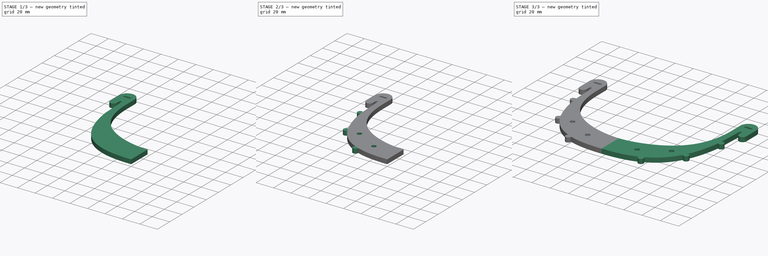
[diagram: build sequence overview — one tinted view per stage of 3, left to right]
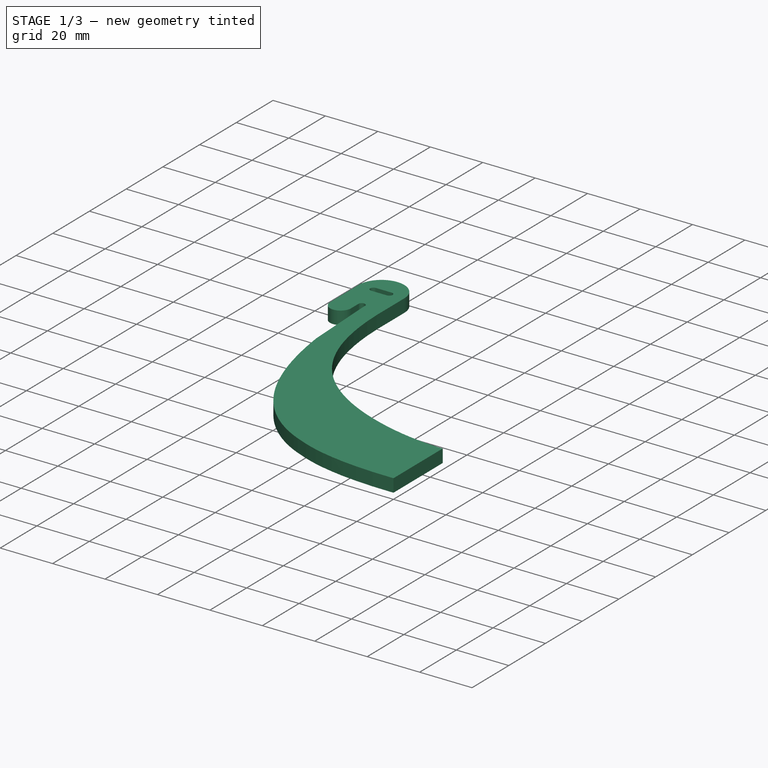
[diagram: stage 1 of 3 — iso view after this stage's code; geometry added in this stage tinted green]
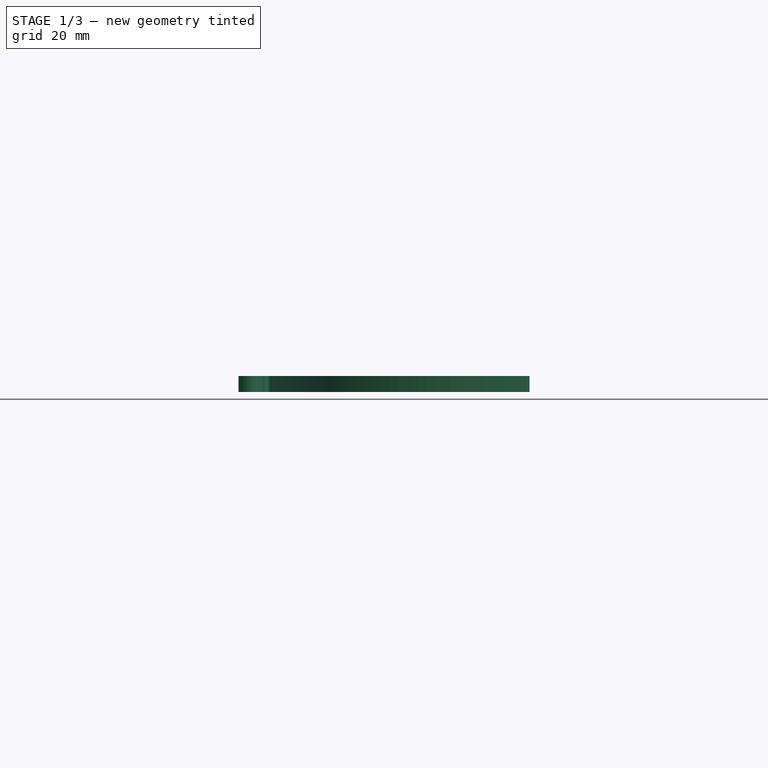
[diagram: stage 1 of 3 — front view after this stage's code; geometry added in this stage tinted green]
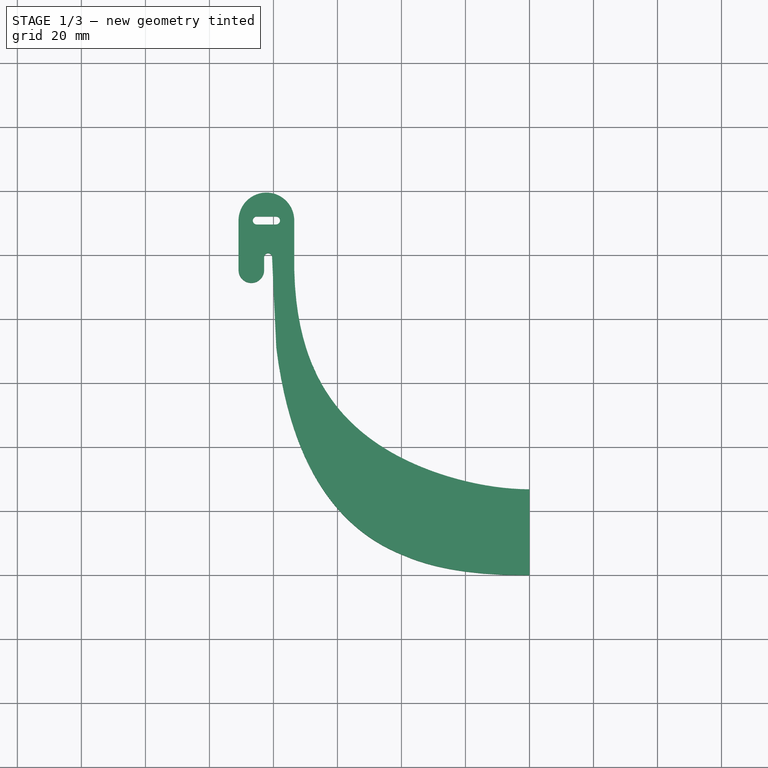
[diagram: stage 1 of 3 — top view after this stage's code; geometry added in this stage tinted green]
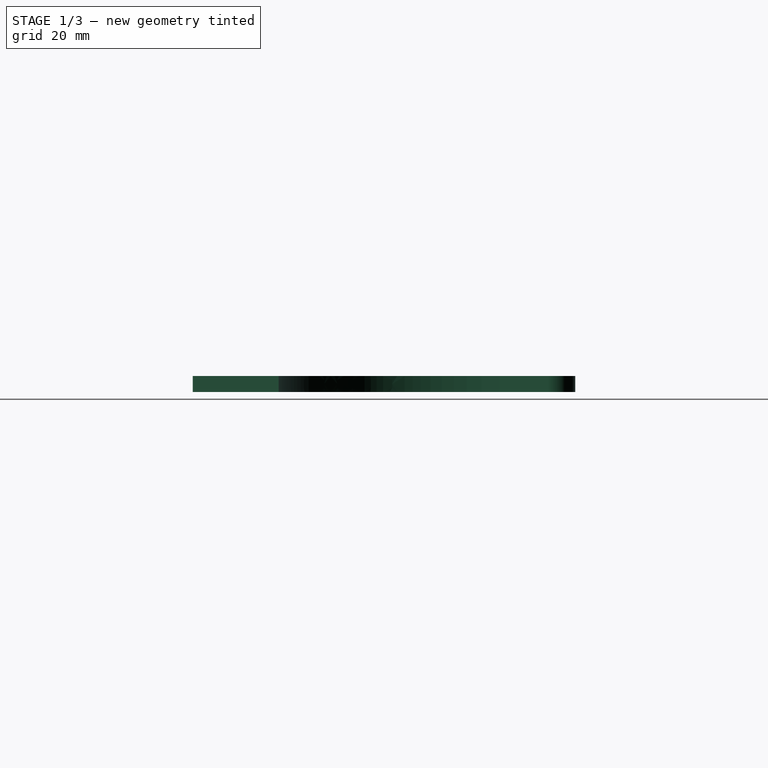
[diagram: stage 1 of 3 — right view after this stage's code; geometry added in this stage tinted green]
FCSTD DOCUMENT  (FreeCAD 0.18.4R)
Label: M-19_v100k_punch
License: CreativeCommons Attribution
LicenseURL: http://creativecommons.org/licenses/by/4.0/
objects: Sketcher::SketchObject×4, PartDesign::Pad×2, PartDesign::Pocket×2, PartDesign::Body×1, Part::Mirroring×1, Part::MultiFuse×1, Part::Part2DObjectPython×1
note: 16 computed .brp shape members not serialized (recipe doc carries the construction recipe); baked Part::Feature solids carry a one-line shape summary decoded from their .brp

FEATURE [Sketcher::SketchObject] Sketch135
  sketch-geometry (33):
    g0: Circle [constr] CenterX=-73.5 CenterY=101.84 CenterZ=0 NormalX=0 NormalY=0 NormalZ=1 AngleXU=0 Radius=10
    g1: Circle [constr] CenterX=-74.771 CenterY=49.44 CenterZ=0 NormalX=0 NormalY=0 NormalZ=1 AngleXU=0 Radius=10
    g2: Circle [constr] CenterX=-49.529 CenterY=37.3397 CenterZ=0 NormalX=0 NormalY=0 NormalZ=1 AngleXU=0 Radius=10
    g3: BSplineCurve PolesCount=5 KnotsCount=2 Degree=4 IsPeriodic=0
    g4: GeomPoint [constr] X=-73.5 Y=101.84 Z=0
    g5: GeomPoint [constr] X=0 Y=26.8397 Z=0
    g6: Circle [constr] CenterX=-22.686 CenterY=26.7801 CenterZ=0 NormalX=0 NormalY=0 NormalZ=1 AngleXU=0 Radius=10
    g7: Circle [constr] CenterX=0 CenterY=26.8397 CenterZ=0 NormalX=0 NormalY=0 NormalZ=1 AngleXU=0 Radius=10
    g8: LineSegment StartX=0 StartY=26.8397 StartZ=0 EndX=0 EndY=0 EndZ=0
    g9: Circle [constr] CenterX=0 CenterY=0 CenterZ=0 NormalX=0 NormalY=0 NormalZ=1 AngleXU=0 Radius=3
    g10: Circle [constr] CenterX=-24.669 CenterY=-0.204 CenterZ=0 NormalX=0 NormalY=0 NormalZ=1 AngleXU=0 Radius=3
    g11: Circle [constr] CenterX=-39 CenterY=6.04 CenterZ=0 NormalX=0 NormalY=0 NormalZ=1 AngleXU=0 Radius=3
    g12: BSplineCurve PolesCount=3 KnotsCount=2 Degree=2 IsPeriodic=0
    g13: GeomPoint [constr] X=0 Y=0 Z=0
    g14: GeomPoint [constr] X=-39 Y=6.04 Z=0
    g15: Circle [constr] CenterX=-39 CenterY=6.04 CenterZ=0 NormalX=0 NormalY=0 NormalZ=1 AngleXU=0 Radius=7
    g16: Circle [constr] CenterX=-72.6 CenterY=18.986 CenterZ=0 NormalX=0 NormalY=0 NormalZ=1 AngleXU=0 Radius=7
    g17: BSplineCurve PolesCount=3 KnotsCount=2 Degree=2 IsPeriodic=0
    g18: GeomPoint [constr] X=-39 Y=6.04 Z=0
    g19: GeomPoint [constr] X=-79.11 Y=71.198 Z=0
    g20: Circle [constr] CenterX=-79.11 CenterY=71.198 CenterZ=0 NormalX=0 NormalY=0 NormalZ=1 AngleXU=0 Radius=7
    g21: Circle [constr] CenterX=-79.11 CenterY=71.198 CenterZ=0 NormalX=0 NormalY=0 NormalZ=1 AngleXU=0 Radius=5
    g22: Circle [constr] CenterX=-80.407 CenterY=98.996 CenterZ=0 NormalX=0 NormalY=0 NormalZ=1 AngleXU=0 Radius=5
    g23: BSplineCurve PolesCount=2 KnotsCount=2 Degree=1 IsPeriodic=0
    g24: GeomPoint [constr] X=-79.11 Y=71.198 Z=0
    g25: GeomPoint [constr] X=-80.407 Y=98.996 Z=0
    g26: LineSegment StartX=-80.407 StartY=98.996 StartZ=0 EndX=-80.407 EndY=99.34 EndZ=0
    g27: ArcOfCircle CenterX=-81.657 CenterY=99.34 CenterZ=0 NormalX=0 NormalY=0 NormalZ=1 AngleXU=0 Radius=1.25 StartAngle=-9e-16 EndAngle=3.14159
    g28: LineSegment StartX=-82.907 StartY=99.34 StartZ=0 EndX=-82.907 EndY=95.34 EndZ=0
    g29: ArcOfCircle CenterX=-86.907 CenterY=95.34 CenterZ=0 NormalX=0 NormalY=0 NormalZ=1 AngleXU=0 Radius=4 StartAngle=3.14159 EndAngle=6.28319
    g30: LineSegment StartX=-90.907 StartY=95.34 StartZ=0 EndX=-90.907 EndY=110.84 EndZ=0
    g31: LineSegment StartX=-73.5 StartY=110.84 StartZ=0 EndX=-73.5 EndY=101.84 EndZ=0
    g32: ArcOfCircle CenterX=-82.2035 CenterY=110.84 CenterZ=0 NormalX=0 NormalY=0 NormalZ=1 AngleXU=0 Radius=8.7035 StartAngle=0 EndAngle=3.14159
  constraints (79):
    c: Radius(g0) = 10
    c: Equal(g0,g1)
    c: Equal(g0,g2)
    c: InternalAlignment(g0,g3)
    c: InternalAlignment(g1,g3)
    c: InternalAlignment(g2,g3)
    c: InternalAlignment(g4,g3)
    c: InternalAlignment(g5,g3)
    c: InternalAlignment(g6,g3)
    c: Equal(g6,g0)
    c: InternalAlignment(g7,g3)
    c: Equal(g7,g0)
    c: Coincident(g8,g3)
    c: Vertical(g8)
    c: DistanceY(g8,g8) = 26.8397
    c: Coincident(g12,g8)
    c: Radius(g9) = 3
    c: Equal(g9,g10)
    c: Equal(g9,g11)
    c: InternalAlignment(g9,g12)
    c: InternalAlignment(g10,g12)
    c: InternalAlignment(g11,g12)
    c: InternalAlignment(g13,g12)
    c: InternalAlignment(g14,g12)
    c: Coincident(g17,g12)
    c: Radius(g15) = 7
    c: Equal(g15,g16)
    c: InternalAlignment(g15,g17)
    c: InternalAlignment(g16,g17)
    c: InternalAlignment(g18,g17)
    c: InternalAlignment(g19,g17)
    c: InternalAlignment(g20,g17)
    c: Equal(g20,g15)
    c: Radius(g21) = 5
    c: Equal(g21,g22)
    c: InternalAlignment(g21,g23)
    c: InternalAlignment(g22,g23)
    c: InternalAlignment(g24,g23)
    c: InternalAlignment(g25,g23)
    c: Coincident(g23,g17)
    c: Coincident(g26,g23)
    c: Vertical(g26)
    c: Tangent(g26,g27) = -1.5708
    c: Tangent(g27,g28) = -1.5708
    c: Tangent(g28,g29) = 1.5708
    c: Vertical(g30)
    c: Coincident(g31,g3)
    c: Vertical(g31)
    c: DistanceX(g6,g3) = 22.686
    c: DistanceY(g6,g3) = 0.059601
    c: DistanceX(g2,g3) = 49.529
    c: DistanceY(g3,g2) = 10.5
    c: DistanceX(g3,g3) = 73.5
    c: DistanceY(g3,g3) = 75
    c: DistanceX(g10,g8) = 24.669
    c: DistanceY(g10,g8) = 0.204
    c: DistanceX(g12,g8) = 39
    c: DistanceY(g8,g12) = 6.04
    c: DistanceX(g16,g8) = 72.6
    c: DistanceY(g8,g16) = 18.986
    c: DistanceX(g1,g8) = 74.771
    c: DistanceY(g8,g1) = 49.44
    c: DistanceX(g17,g8) = 79.11
    c: DistanceY(g8,g17) = 71.198
    c: DistanceX(g23,g8) = 80.407
    c: DistanceY(g8,g23) = 98.996
    c: DistanceY(g26,g26) = 0.344
    c: Radius(g27) = 1.25
    c: DistanceY(g28,g28) = 4
    c: DistanceY(g31,g31) = 9
    c: Tangent(g29,g30) = 1.5708
    c: PointOnObject(g3,g-2)
    c: Angle(g32) = 3.14159
    c: Coincident(g32,g31)
    c: Coincident(g32,g30)
    c: DistanceY(g32,g31) = 0
    c: DistanceY(g-1,g8) = 0
    c: Vertical(g28)
    c: Radius(g29) = 4
FEATURE [PartDesign::Pad] Pad
  Length = 5
  Length2 = 100
  Profile = -> Sketch135
  Refine = true
  Type = 0
FEATURE [Sketcher::SketchObject] Sketch136
  ExternalGeometry = -> [Pad]
  MapMode = 5
  Placement = pos=(0,0,5) rot=(0,0,1;0rad)
  Support = -> [Pad]
  sketch-geometry (6):
    g0: ArcOfCircle CenterX=-85.2035 CenterY=110.84 CenterZ=0 NormalX=0 NormalY=0 NormalZ=1 AngleXU=0 Radius=1.25 StartAngle=1.5708 EndAngle=4.71239
    g1: ArcOfCircle CenterX=-79.2035 CenterY=110.84 CenterZ=0 NormalX=0 NormalY=0 NormalZ=1 AngleXU=0 Radius=1.25 StartAngle=4.71239 EndAngle=7.85398
    g2: LineSegment StartX=-85.2035 StartY=109.59 StartZ=0 EndX=-79.2035 EndY=109.59 EndZ=0
    g3: LineSegment StartX=-85.2035 StartY=112.09 StartZ=0 EndX=-79.2035 EndY=112.09 EndZ=0
    g4: LineSegment [constr] StartX=-79.2035 StartY=110.84 StartZ=0 EndX=-73.5 EndY=110.84 EndZ=0
    g5: LineSegment [constr] StartX=-85.2035 StartY=110.84 StartZ=0 EndX=-90.907 EndY=110.84 EndZ=0
  constraints (15):
    c: Equal(g3,g2)
    c: Radius(g0) = 1.25
    c: DistanceX(g3,g3) = 6
    c: Horizontal(g2)
    c: Tangent(g0,g3) = 1.5708
    c: Tangent(g1,g3) = 1.5708
    c: Tangent(g1,g2) = -1.5708
    c: Tangent(g0,g2) = -1.5708
    c: Coincident(g4,g1)
    c: Coincident(g4,g-3)
    c: Horizontal(g4)
    c: Coincident(g5,g0)
    c: Coincident(g5,g-3)
    c: Equal(g5,g4)
    c: Equal(g0,g1)
FEATURE [PartDesign::Pocket] Pocket
  BaseFeature = -> Pad
  Length = 5
  Length2 = 100
  Profile = -> Sketch136
  Refine = true
  Type = 1
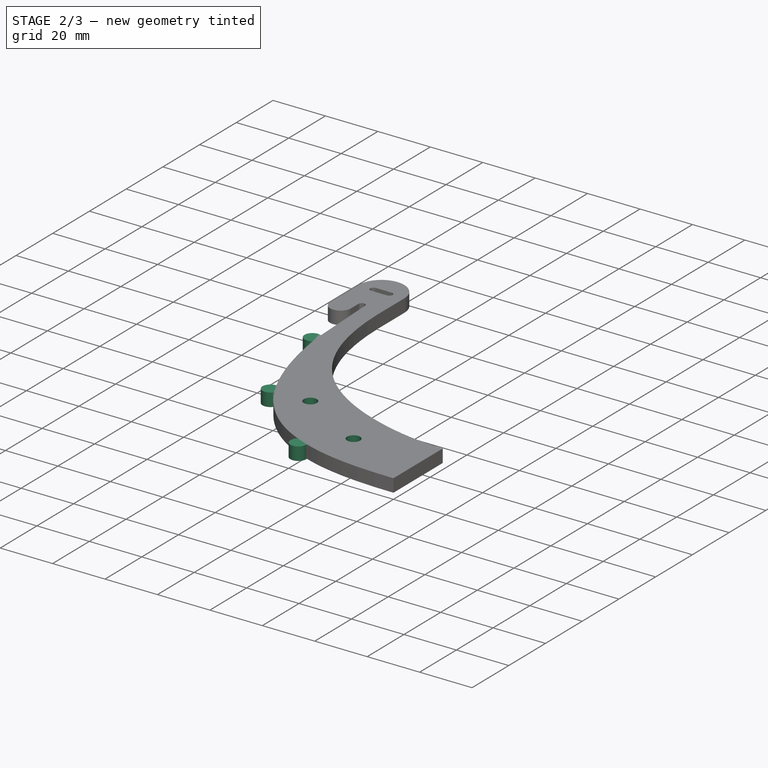
[diagram: stage 2 of 3 — iso view after this stage's code; geometry added in this stage tinted green]
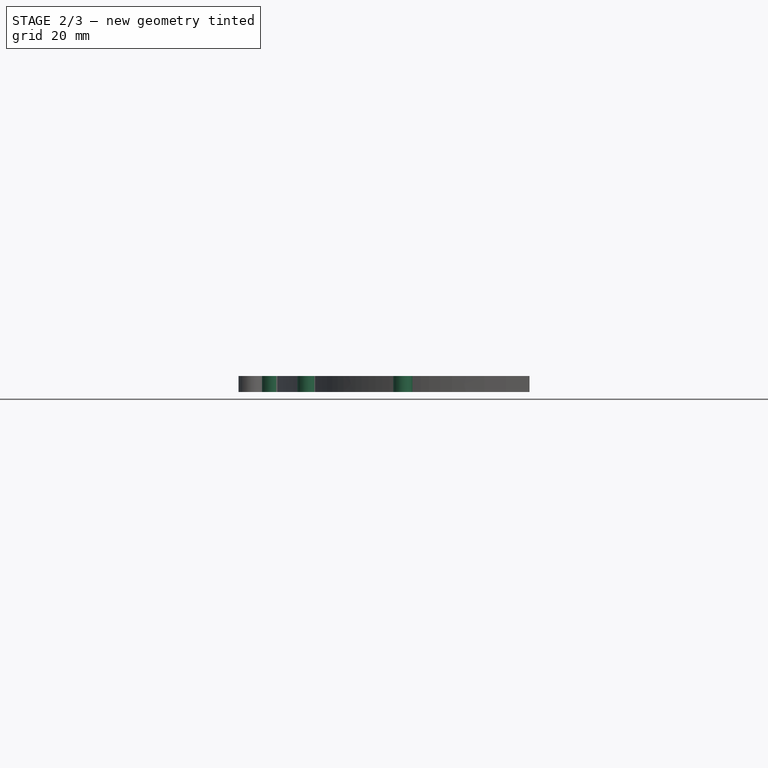
[diagram: stage 2 of 3 — front view after this stage's code; geometry added in this stage tinted green]
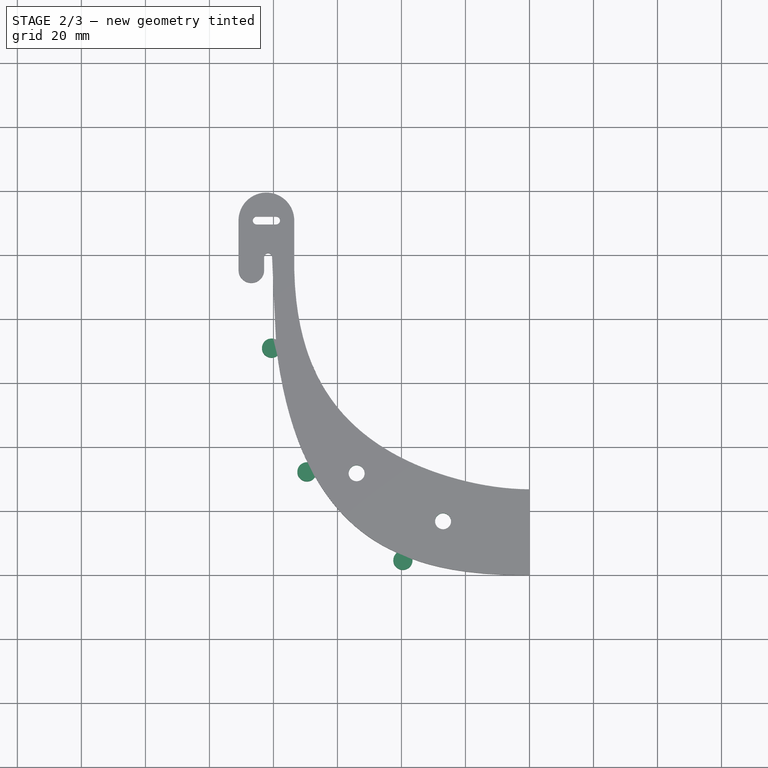
[diagram: stage 2 of 3 — top view after this stage's code; geometry added in this stage tinted green]
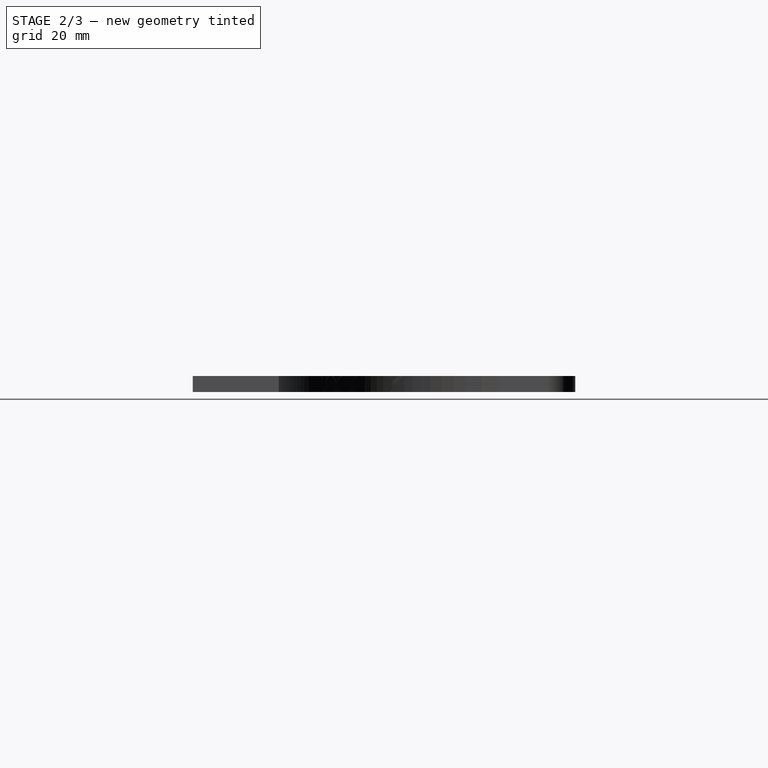
[diagram: stage 2 of 3 — right view after this stage's code; geometry added in this stage tinted green]
FEATURE [Sketcher::SketchObject] Sketch137
  ExternalGeometry = -> [Pocket]
  MapMode = 5
  Placement = pos=(0,0,5) rot=(0,0,1;0rad)
  Support = -> [Pocket]
  sketch-geometry (14):
    g0: Circle [constr] CenterX=-39 CenterY=6.04 CenterZ=0 NormalX=0 NormalY=0 NormalZ=1 AngleXU=0 Radius=1.5
    g1: Circle CenterX=-39.5498 CenterY=4.64437 CenterZ=0 NormalX=0 NormalY=0 NormalZ=1 AngleXU=0 Radius=3
    g2: LineSegment [constr] StartX=-40.3956 StartY=6.58975 StartZ=0 EndX=-37.6044 EndY=5.49025 EndZ=0
    g3: LineSegment [constr] StartX=-39 StartY=6.04 StartZ=0 EndX=-39.5498 EndY=4.64437 EndZ=0
    g4: Circle [constr] CenterX=-79.11 CenterY=71.198 CenterZ=0 NormalX=0 NormalY=0 NormalZ=1 AngleXU=0 Radius=1.5
    g5: Circle CenterX=-80.5894 CenterY=70.9504 CenterZ=0 NormalX=0 NormalY=0 NormalZ=1 AngleXU=0 Radius=3
    g6: LineSegment [constr] StartX=-79.3576 StartY=72.6774 StartZ=0 EndX=-78.8624 EndY=69.7186 EndZ=0
    g7: LineSegment [constr] StartX=-79.11 StartY=71.198 StartZ=0 EndX=-80.5894 EndY=70.9504 EndZ=0
    g8: Circle CenterX=-69.5339 CenterY=32.2794 CenterZ=0 NormalX=0 NormalY=0 NormalZ=1 AngleXU=0 Radius=3
    g9: Circle [constr] CenterX=-68.2095 CenterY=32.9837 CenterZ=0 NormalX=0 NormalY=0 NormalZ=1 AngleXU=0 Radius=1.5
    g10: LineSegment [constr] StartX=-68.9137 StartY=34.3081 StartZ=0 EndX=-67.5053 EndY=31.6592 EndZ=0
    g11: LineSegment [constr] StartX=-68.2095 StartY=32.9837 StartZ=0 EndX=-69.5339 EndY=32.2794 EndZ=0
    g12: LineSegment [constr] StartX=-79.11 StartY=71.198 StartZ=0 EndX=-39 EndY=6.04 EndZ=0
    g13: LineSegment [constr] StartX=-59.055 StartY=38.619 StartZ=0 EndX=-68.2095 EndY=32.9837 EndZ=0
  constraints (38):
    c: Radius(g0) = 1.5
    c: Radius(g1) = 3
    c: Tangent(g1,g0)
    c: PointOnObject(g2,g0)
    c: PointOnObject(g2,g0)
    c: Angle(g2) = -0.375246
    c: Coincident(g3,g0)
    c: Coincident(g3,g1)
    c: Angle(g2,g3) = 1.5708
    c: Radius(g4) = 1.5
    c: Radius(g5) = 3
    c: PointOnObject(g6,g4)
    c: PointOnObject(g6,g4)
    c: Angle(g6) = -1.40499
    c: Coincident(g7,g4)
    c: PointOnObject(g7,g4)
    c: Angle(g7,g6) = 1.5708
    c: Coincident(g5,g7)
    c: PointOnObject(g4,g6)
    c: PointOnObject(g0,g2)
    c: Coincident(g4,g-3)
    c: Coincident(g0,g-3)
    c: Equal(g5,g8)
    c: Equal(g9,g4)
    c: Coincident(g11,g9)
    c: PointOnObject(g9,g10)
    c: Perpendicular(g10,g11)
    c: PointOnObject(g11,g9)
    c: PointOnObject(g10,g9)
    c: PointOnObject(g10,g9)
    c: Coincident(g11,g8)
    c: Coincident(g12,g4)
    c: Coincident(g12,g0)
    c: PointOnObject(g13,g12)
    c: Symmetric(g0,g4,g13)
    c: Distance(g13) = 10.75
    c: Coincident(g9,g13)
    c: Angle(g10) = -1.0821
FEATURE [PartDesign::Pad] Pad001
  BaseFeature = -> Pocket
  Length = 5
  Length2 = 100
  Profile = -> Sketch137
  Refine = true
  Reversed = true
  Type = 0
FEATURE [Sketcher::SketchObject] Sketch
  ExternalGeometry = -> [Pad001]
  MapMode = 5
  Placement = pos=(0,0,5) rot=(0,0,1;0rad)
  Support = -> [Pad001]
  sketch-geometry (2):
    g0: Circle CenterX=-27 CenterY=16.8397 CenterZ=0 NormalX=0 NormalY=0 NormalZ=1 AngleXU=0 Radius=2.5
    g1: Circle CenterX=-54 CenterY=31.8397 CenterZ=0 NormalX=0 NormalY=0 NormalZ=1 AngleXU=0 Radius=2.5
  constraints (6):
    c: Radius(g1) = 2.5
    c: Equal(g1,g0)
    c: DistanceX(g-2,g0) = -27
    c: DistanceX(g1,g0) = 27
    c: DistanceY(g0,g-3) = 10
    c: DistanceY(g0,g1) = 15
FEATURE [PartDesign::Pocket] Pocket001
  BaseFeature = -> Pad001
  Length = 5
  Length2 = 100
  Profile = -> Sketch
  Refine = true
  Type = 1
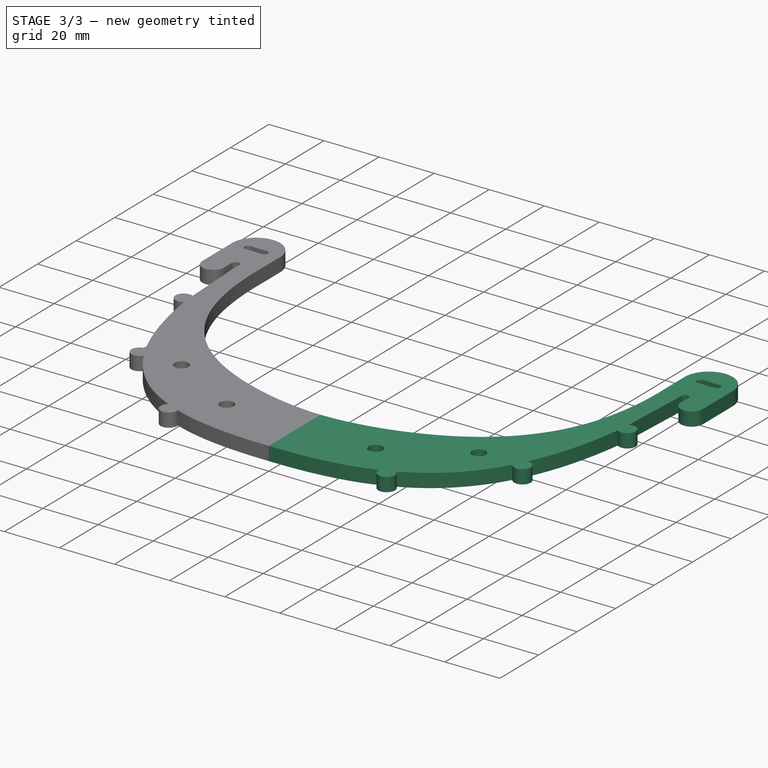
[diagram: stage 3 of 3 — iso view after this stage's code; geometry added in this stage tinted green]
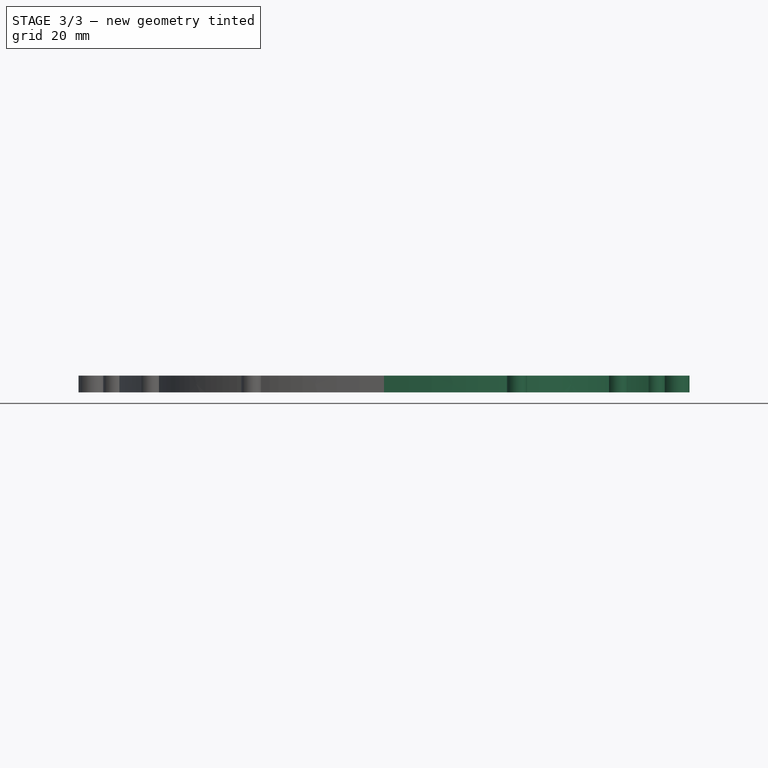
[diagram: stage 3 of 3 — front view after this stage's code; geometry added in this stage tinted green]
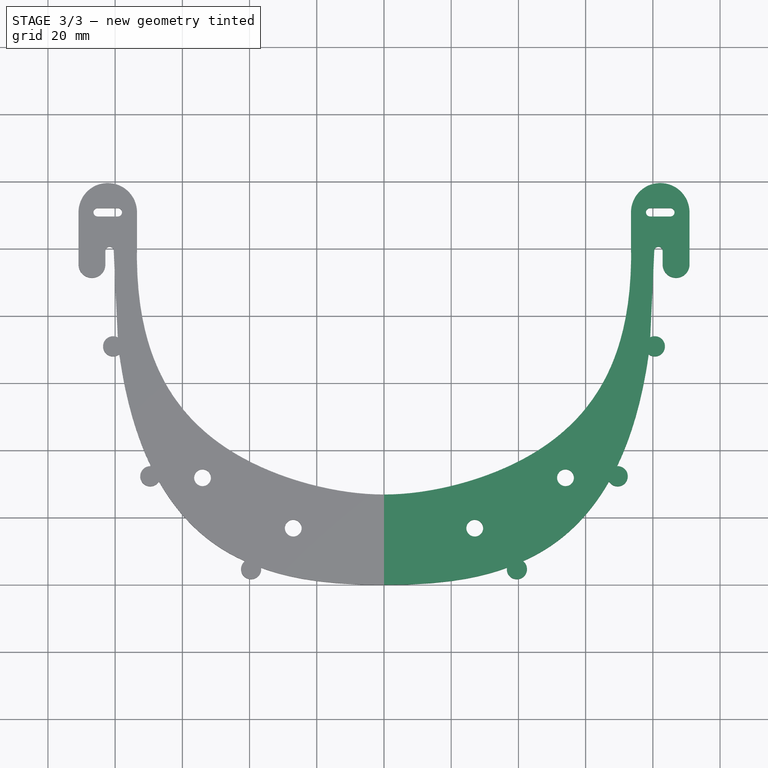
[diagram: stage 3 of 3 — top view after this stage's code; geometry added in this stage tinted green]
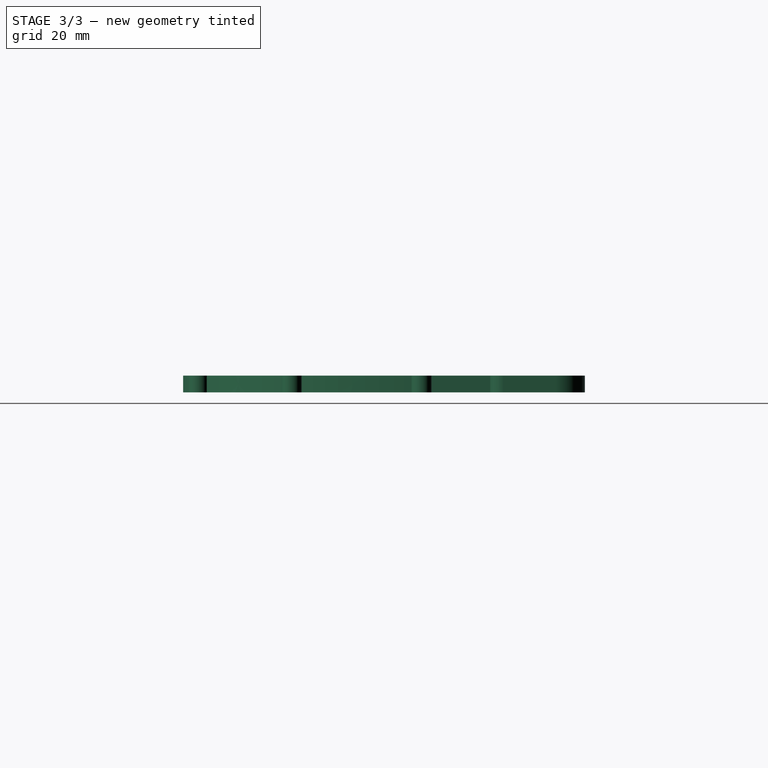
[diagram: stage 3 of 3 — right view after this stage's code; geometry added in this stage tinted green]
FEATURE [PartDesign::Body] Body
  Group = -> [Sketch135,Sketch136,Sketch137,Pad,Pocket,Pad001,Sketch,Pocket001]
  Origin = -> Origin
  Tip = -> Pocket001
FEATURE [Part::Mirroring] Part__Mirroring  label="Body (Mirror #1)"
  Base = (0,0,0)
  Normal = (1,0,0)
  Source = -> Body
FEATURE [Part::MultiFuse] Fusion
  Refine = true
  Shapes = -> [Part__Mirroring,Body]
FEATURE [Part::Part2DObjectPython] Shape2DView001  # Draft 2D object (typed FeaturePython)
  Base = -> Fusion
  HiddenLines = false
  InPlace = true
  Projection = (0,0,1)
  ProjectionMode = 0
  SegmentLength = 0.05
  Tessellation = false
  VisibleOnly = false
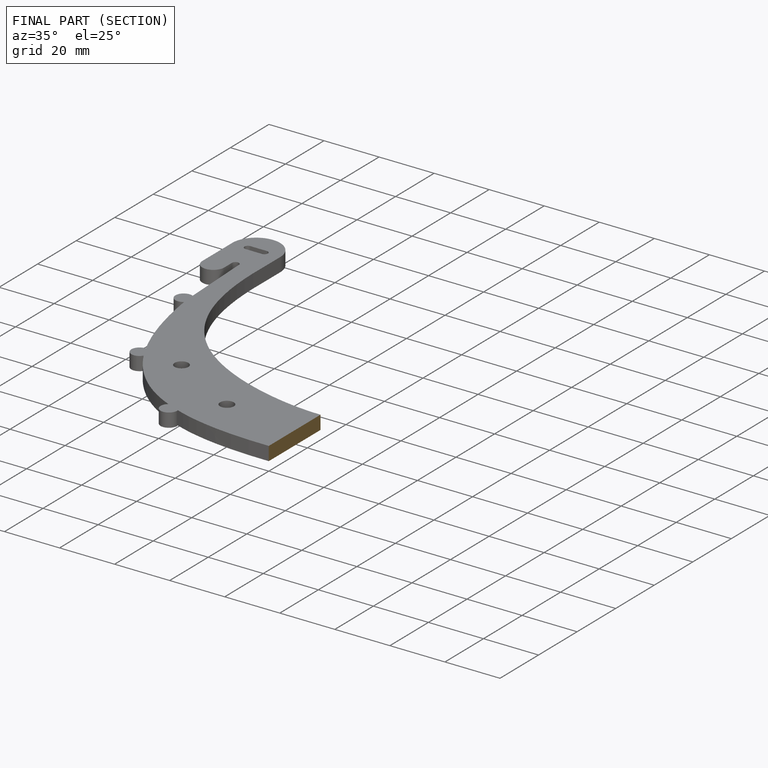
[diagram: finished part — half-section view (interior)]
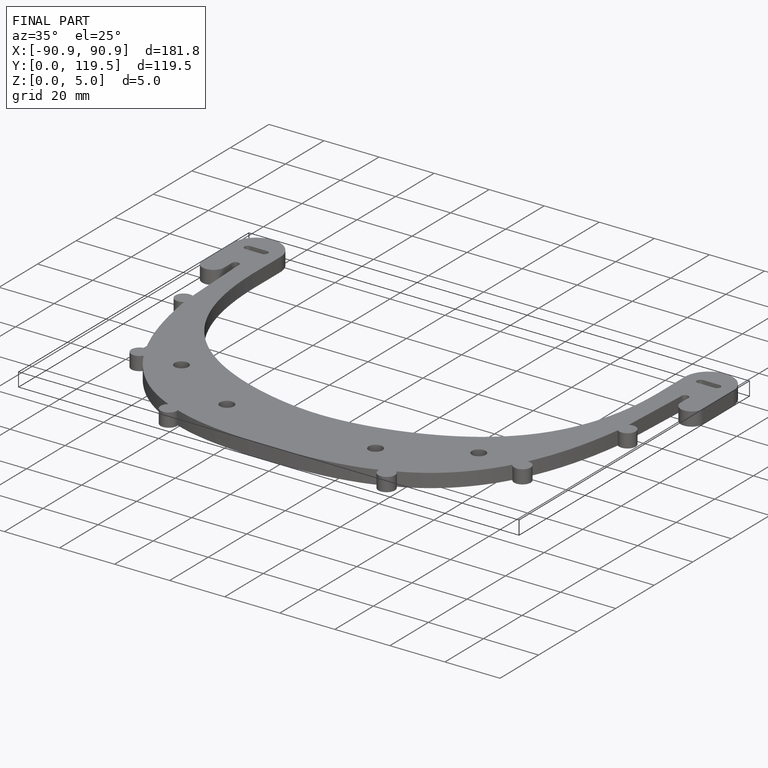
[diagram: finished part — iso view with bounding-box wireframe]
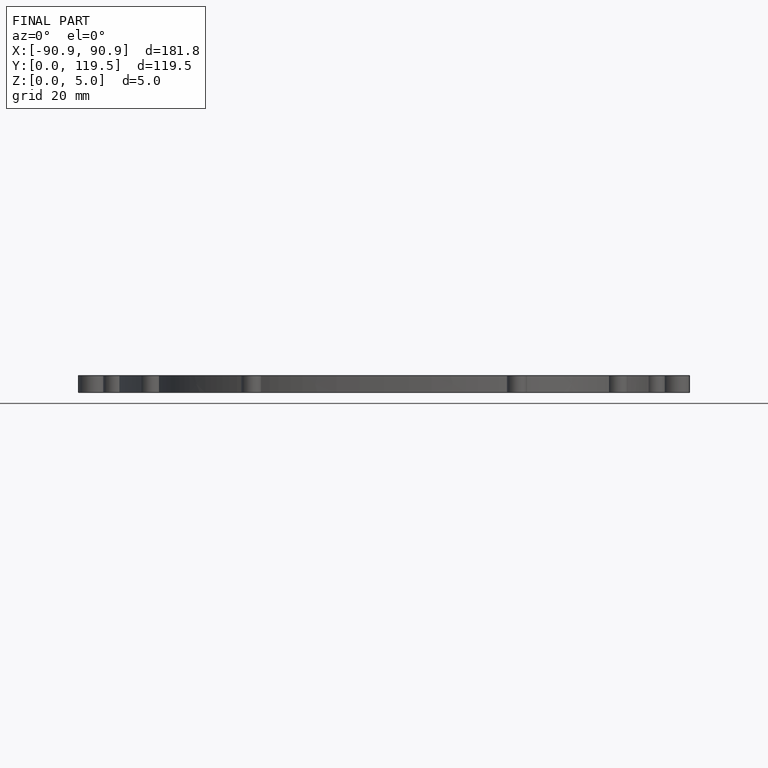
[diagram: finished part — front view with bounding-box wireframe]
